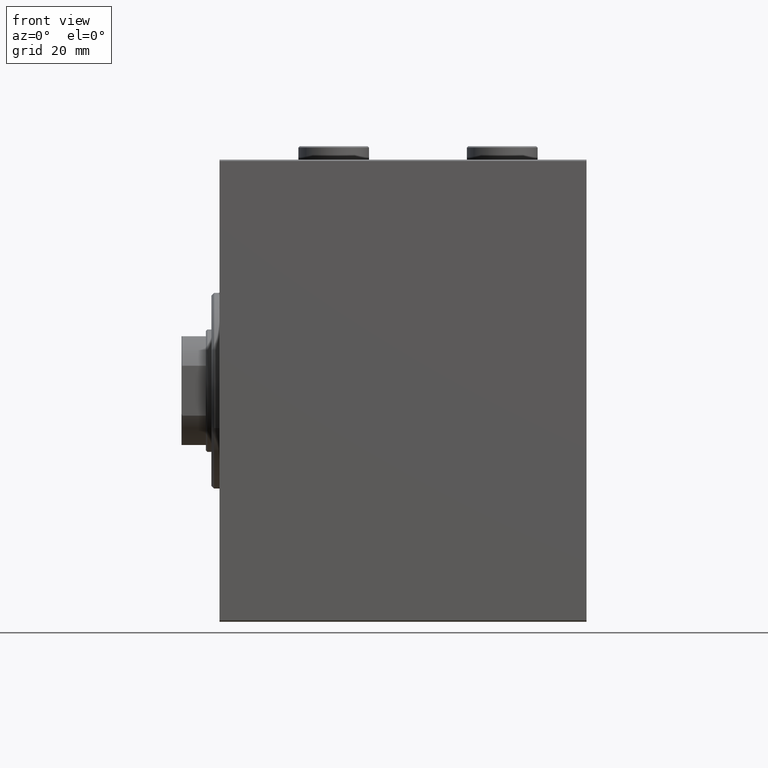
[diagram: clean part render]
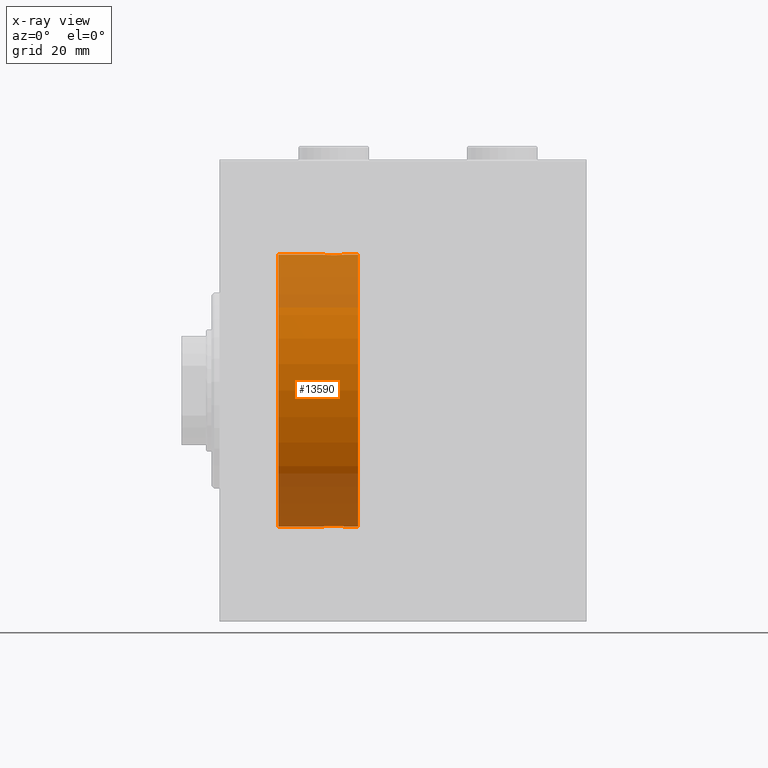
[diagram: x-ray — body ghosted, one internal face saturated and labeled with its STEP entity id]
A machine part, front view, then the same camera in x-ray: the body is ghosted and one INTERNAL B-rep face — a face not visible from any outside direction — is saturated and labeled: STEP entity #13590.
In plain terms, the highlighted cylindrical surface (partial cylindrical patch) has radius 50 mm, axis along (-1, -0, -0).
Its self-contained STEP definition (entity closure, byte-faithful):
#260 = CARTESIAN_POINT ( 'NONE',  ( 39.87368355124921493, -3.690299572754706325, -49.86386974736159772 ) ) ;
#594 = CARTESIAN_POINT ( 'NONE',  ( 37.75000000000000711, 3.968053759906218216E-15, -50.00000000000000000 ) ) ;
#706 = CARTESIAN_POINT ( 'NONE',  ( 37.88750298919665482, -1.108337267831482009, -49.98846998601261760 ) ) ;
#2549 = CARTESIAN_POINT ( 'NONE',  ( 43.88744739392799943, -3.818052230167706007, -49.85412671291931730 ) ) ;
#2625 = CARTESIAN_POINT ( 'NONE',  ( 46.03079796155343928, -1.375411031076041901, 49.98173289062310687 ) ) ;
#2845 = CARTESIAN_POINT ( 'NONE',  ( 40.89676703965783133, -4.113647494206481348, 49.83052139214890985 ) ) ;
#3077 = CARTESIAN_POINT ( 'NONE',  ( 38.62118282736263097, -2.593114840406127275, 49.93325460257640458 ) ) ;
#3301 = CARTESIAN_POINT ( 'NONE',  ( 45.37519984081966840, -2.597781786597462172, 49.93300953359122474 ) ) ;
#3440 = CARTESIAN_POINT ( 'NONE',  ( 42.28395287026697247, -4.249777379711388470, -49.81906655360197789 ) ) ;
#5381 = VERTEX_POINT ( 'NONE', #19300 ) ;
#5707 = ORIENTED_EDGE ( 'NONE', *, *, #18547, .T. ) ;
#5817 = CARTESIAN_POINT ( 'NONE',  ( 41.44002132304352415, -4.222042462213121183, 49.82145436824653473 ) ) ;
#6070 = LINE ( 'NONE', #9938, #29410 ) ;
#6266 = VECTOR ( 'NONE', #38407, 1000.000000000000000 ) ;
#6853 = CARTESIAN_POINT ( 'NONE',  ( 51.00000000000000000, 6.123233995736766085E-15, -50.00000000000000000 ) ) ;
#6868 = CARTESIAN_POINT ( 'NONE',  ( 43.37333436579038448, -4.031616700143171528, -49.83731072121799599 ) ) ;
#7300 = EDGE_CURVE ( 'NONE', #10090, #13789, #42896, .T. ) ;
#7938 = ORIENTED_EDGE ( 'NONE', *, *, #44762, .T. ) ;
#8007 = CARTESIAN_POINT ( 'NONE',  ( 37.75000000000000711, 3.968053759906218216E-15, -50.00000000000000000 ) ) ;
#9370 = ORIENTED_EDGE ( 'NONE', *, *, #21410, .F. ) ;
#9464 = CARTESIAN_POINT ( 'NONE',  ( 43.09737617879037685, -4.115209769591108291, 49.83039196709103891 ) ) ;
#9831 = CARTESIAN_POINT ( 'NONE',  ( 46.22310752799001676, -0.5531336717328987351, -49.99769193709645521 ) ) ;
#9938 = CARTESIAN_POINT ( 'NONE',  ( 51.00000000000000000, 0.000000000000000000, 50.00000000000000000 ) ) ;
#10090 = VERTEX_POINT ( 'NONE', #36501 ) ;
#10138 = CARTESIAN_POINT ( 'NONE',  ( 40.11255260607202899, -3.818052230167721106, 49.85412671291931730 ) ) ;
#10191 = CARTESIAN_POINT ( 'NONE',  ( 46.25000000000000000, 6.123233970928975205E-15, -50.00000000000000000 ) ) ;
#10279 = AXIS2_PLACEMENT_3D ( 'NONE', #19570, #26892, #32832 ) ;
#10295 = CARTESIAN_POINT ( 'NONE',  ( 44.81153066515420136, -3.199146701881660171, -49.89793607725462010 ) ) ;
#10501 = VECTOR ( 'NONE', #44972, 1000.000000000000000 ) ;
#10736 = CARTESIAN_POINT ( 'NONE',  ( 37.96920203844656783, -1.375411031076034130, -49.98173289062310687 ) ) ;
#10831 = AXIS2_PLACEMENT_3D ( 'NONE', #14688, #28392, #28614 ) ;
#11191 = CARTESIAN_POINT ( 'NONE',  ( 40.90262382120962315, -4.115209769591094968, -49.83039196709103891 ) ) ;
#11420 = CARTESIAN_POINT ( 'NONE',  ( 38.18160751012128884, -1.886522330773408695, -49.96505190380065642 ) ) ;
#12302 = B_SPLINE_CURVE_WITH_KNOTS ( 'NONE', 3,
 ( #20179, #33880, #34333, #23616, #30242, #45062, #26813, #3077, #16997, #37988, #34561, #30928, #10138, #40969, #2845, #5817, #13794, #16769, #37086, #9464, #13346, #23393, #30700, #44846, #13568, #37313, #3301, #27276, #27724, #2625, #41415, #13117, #27053, #24067 ),
 .UNSPECIFIED., .F., .F.,
 ( 4, 2, 2, 2, 2, 2, 2, 2, 2, 2, 2, 2, 2, 2, 2, 2, 4 ),
 ( 0.01329343152928754573, 0.01412407817529632778, 0.01495472482130510983, 0.01578537146731389187, 0.01661601811332267392, 0.01744666475933145597, 0.01827731140534023802, 0.01910795805134902006, 0.01993860469735780558, 0.02076925134336658763, 0.02159989798937536967, 0.02243054463538415519, 0.02326119128139293724, 0.02409183792740172275, 0.02492248457341050133, 0.02575313121941928685, 0.02658377786542807236 ),
 .UNSPECIFIED. ) ;
#12502 = AXIS2_PLACEMENT_3D ( 'NONE', #23837, #30698, #34774 ) ;
#12954 = B_SPLINE_CURVE_WITH_KNOTS ( 'NONE', 3,
 ( #41114, #31072, #9831, #44989, #27649, #23762, #33803, #26974, #41571, #10295, #37682, #44316, #2549, #6868, #20778, #34704, #3440, #17363, #31289, #11191, #24899, #20994, #260, #14610, #24439, #14168, #25352, #31732, #11420, #10736, #706, #39262, #18270, #8007 ),
 .UNSPECIFIED., .F., .F.,
 ( 4, 2, 2, 2, 2, 2, 2, 2, 2, 2, 2, 2, 2, 2, 2, 2, 4 ),
 ( 0.01329343152928757349, 0.01412407817529635554, 0.01495472482130513932, 0.01578537146731392310, 0.01661601811332270515, 0.01744666475933148719, 0.01827731140534026924, 0.01910795805134905129, 0.01993860469735783680, 0.02076925134336661885, 0.02159989798937540090, 0.02243054463538418294, 0.02326119128139296499, 0.02409183792740174704, 0.02492248457341052909, 0.02575313121941931460, 0.02658377786542809665 ),
 .UNSPECIFIED. ) ;
#13117 = CARTESIAN_POINT ( 'NONE',  ( 46.22242635520781562, -0.5587117664567141651, 49.99763378604805553 ) ) ;
#13326 = LINE ( 'NONE', #44376, #6266 ) ;
#13346 = CARTESIAN_POINT ( 'NONE',  ( 43.36710647554575360, -4.033756670430847180, 49.83713703490975178 ) ) ;
#13568 = CARTESIAN_POINT ( 'NONE',  ( 44.80697831839310652, -3.203153387937322183, 49.89767833571684719 ) ) ;
#13590 = ADVANCED_FACE ( 'NONE', ( #40580 ), #43791, .F. ) ;
#13721 = CARTESIAN_POINT ( 'NONE',  ( 51.00000000000000000, 6.123233995736766085E-15, -50.00000000000000000 ) ) ;
#13789 = VERTEX_POINT ( 'NONE', #44466 ) ;
#13794 = CARTESIAN_POINT ( 'NONE',  ( 41.71604712973302043, -4.249777379711404457, 49.81906655360197789 ) ) ;
#14168 = CARTESIAN_POINT ( 'NONE',  ( 38.80078072038718062, -2.811461347331092320, -49.92127983148853332 ) ) ;
#14239 = ORIENTED_EDGE ( 'NONE', *, *, #7300, .T. ) ;
#14610 = CARTESIAN_POINT ( 'NONE',  ( 39.41179785323798512, -3.382416624899766244, -49.88570010427955026 ) ) ;
#14688 = CARTESIAN_POINT ( 'NONE',  ( 21.60000000000000142, 0.000000000000000000, 0.000000000000000000 ) ) ;
#14810 = VERTEX_POINT ( 'NONE', #10191 ) ;
#15688 = EDGE_CURVE ( 'NONE', #5381, #40502, #34354, .T. ) ;
#16769 = CARTESIAN_POINT ( 'NONE',  ( 42.27724927037918690, -4.250219976861644433, 49.81902879621014080 ) ) ;
#16997 = CARTESIAN_POINT ( 'NONE',  ( 38.79696438048011942, -2.807099414226279510, 49.92152599098507437 ) ) ;
#17363 = CARTESIAN_POINT ( 'NONE',  ( 41.72275072962082021, -4.250219976861628446, -49.81902879621016211 ) ) ;
#18270 = CARTESIAN_POINT ( 'NONE',  ( 37.75000000000001421, -0.2808785465865586972, -50.00000000000001421 ) ) ;
#18547 = EDGE_CURVE ( 'NONE', #34050, #25473, #12302, .T. ) ;
#19300 = CARTESIAN_POINT ( 'NONE',  ( 51.00000000000000000, 6.123233995736766085E-15, -50.00000000000000000 ) ) ;
#19570 = CARTESIAN_POINT ( 'NONE',  ( 51.00000000000000000, 0.000000000000000000, 0.000000000000000000 ) ) ;
#20179 = CARTESIAN_POINT ( 'NONE',  ( 37.75000000000000711, -2.480770331693776875E-23, 50.00000000000000000 ) ) ;
#20778 = CARTESIAN_POINT ( 'NONE',  ( 43.10323296034215446, -4.113647494206469801, -49.83052139214892406 ) ) ;
#20859 = CARTESIAN_POINT ( 'NONE',  ( 51.00000000000000000, 0.000000000000000000, 50.00000000000000000 ) ) ;
#20994 = CARTESIAN_POINT ( 'NONE',  ( 40.11782950515556934, -3.820681512513366851, -49.85392475515399724 ) ) ;
#21003 = DIRECTION ( 'NONE',  ( -1.000000000000000000, -0.000000000000000000, -0.000000000000000000 ) ) ;
#21410 = EDGE_CURVE ( 'NONE', #40502, #25473, #6070, .T. ) ;
#23393 = CARTESIAN_POINT ( 'NONE',  ( 43.88217049484444487, -3.820681512513379730, 49.85392475515401145 ) ) ;
#23415 = DIRECTION ( 'NONE',  ( -1.000000000000000000, -0.000000000000000000, -0.000000000000000000 ) ) ;
#23616 = CARTESIAN_POINT ( 'NONE',  ( 37.88568086693992143, -1.101350136471743291, 49.98862054280449030 ) ) ;
#23762 = CARTESIAN_POINT ( 'NONE',  ( 45.82100581985224608, -1.881229021238117749, -49.96525240872482954 ) ) ;
#23837 = CARTESIAN_POINT ( 'NONE',  ( 51.00000000000000000, 0.000000000000000000, 0.000000000000000000 ) ) ;
#24067 = CARTESIAN_POINT ( 'NONE',  ( 46.25000000000000000, -1.456404791334935357E-15, 50.00000000000000000 ) ) ;
#24439 = CARTESIAN_POINT ( 'NONE',  ( 39.19302168160690769, -3.203153387937303087, -49.89767833571684008 ) ) ;
#24899 = CARTESIAN_POINT ( 'NONE',  ( 40.63289352445425351, -4.033756670430834745, -49.83713703490973757 ) ) ;
#25352 = CARTESIAN_POINT ( 'NONE',  ( 38.62480015918035292, -2.597781786597455067, -49.93300953359122474 ) ) ;
#25473 = VERTEX_POINT ( 'NONE', #28724 ) ;
#25806 = ORIENTED_EDGE ( 'NONE', *, *, #32177, .F. ) ;
#26813 = CARTESIAN_POINT ( 'NONE',  ( 38.31062844320614857, -2.128188802142364722, 49.95522967821975158 ) ) ;
#26892 = DIRECTION ( 'NONE',  ( -1.000000000000000000, -0.000000000000000000, -0.000000000000000000 ) ) ;
#26974 = CARTESIAN_POINT ( 'NONE',  ( 45.37881717263738324, -2.593114840406115729, -49.93325460257640458 ) ) ;
#27053 = CARTESIAN_POINT ( 'NONE',  ( 46.25000000000001421, -0.2808785465865648034, 50.00000000000001421 ) ) ;
#27276 = CARTESIAN_POINT ( 'NONE',  ( 45.68602832121950286, -2.133925816755179117, 49.95498245321557818 ) ) ;
#27444 = EDGE_CURVE ( 'NONE', #5381, #14810, #41776, .T. ) ;
#27649 = CARTESIAN_POINT ( 'NONE',  ( 46.03272642097310552, -1.369753890039644872, -49.98188917176551627 ) ) ;
#27724 = CARTESIAN_POINT ( 'NONE',  ( 45.81839248987871116, -1.886522330773416911, 49.96505190380066352 ) ) ;
#28392 = DIRECTION ( 'NONE',  ( -1.000000000000000000, 0.000000000000000000, 0.000000000000000000 ) ) ;
#28614 = DIRECTION ( 'NONE',  ( 0.000000000000000000, 0.000000000000000000, 1.000000000000000000 ) ) ;
#28724 = CARTESIAN_POINT ( 'NONE',  ( 46.25000000000000000, -1.456404791334935357E-15, 50.00000000000000000 ) ) ;
#28790 = EDGE_LOOP ( 'NONE', ( #32019, #37898, #7938, #43898, #14239, #25806, #5707, #9370 ) ) ;
#29410 = VECTOR ( 'NONE', #23415, 1000.000000000000000 ) ;
#30242 = CARTESIAN_POINT ( 'NONE',  ( 37.96727357902688738, -1.369753890039652200, 49.98188917176553048 ) ) ;
#30698 = DIRECTION ( 'NONE',  ( -1.000000000000000000, 0.000000000000000000, 0.000000000000000000 ) ) ;
#30700 = CARTESIAN_POINT ( 'NONE',  ( 44.12631644875080639, -3.690299572754719204, 49.86386974736159772 ) ) ;
#30928 = CARTESIAN_POINT ( 'NONE',  ( 39.86863600553844833, -3.687400765141529924, 49.86408552998297949 ) ) ;
#31072 = CARTESIAN_POINT ( 'NONE',  ( 46.25000000000000711, -0.2773743941468470586, -50.00000000000000711 ) ) ;
#31289 = CARTESIAN_POINT ( 'NONE',  ( 41.44591435119851752, -4.222816005855191790, -49.82138837911247720 ) ) ;
#31732 = CARTESIAN_POINT ( 'NONE',  ( 38.31397167878049714, -2.133925816755172455, -49.95498245321557818 ) ) ;
#32019 = ORIENTED_EDGE ( 'NONE', *, *, #15688, .F. ) ;
#32177 = EDGE_CURVE ( 'NONE', #34050, #13789, #13326, .T. ) ;
#32651 = CARTESIAN_POINT ( 'NONE',  ( 37.75000000000000711, -2.480770331693776875E-23, 50.00000000000000000 ) ) ;
#32832 = DIRECTION ( 'NONE',  ( 0.000000000000000000, 0.000000000000000000, 1.000000000000000000 ) ) ;
#33112 = EDGE_CURVE ( 'NONE', #37336, #10090, #41582, .T. ) ;
#33803 = CARTESIAN_POINT ( 'NONE',  ( 45.68937155679385853, -2.128188802142354508, -49.95522967821975158 ) ) ;
#33880 = CARTESIAN_POINT ( 'NONE',  ( 37.74999999999999289, -0.2773743941468536645, 50.00000000000000000 ) ) ;
#34050 = VERTEX_POINT ( 'NONE', #32651 ) ;
#34333 = CARTESIAN_POINT ( 'NONE',  ( 37.77689247200999745, -0.5531336717329046193, 49.99769193709644099 ) ) ;
#34354 = CIRCLE ( 'NONE', #12502, 50.00000000000000000 ) ;
#34561 = CARTESIAN_POINT ( 'NONE',  ( 39.40687279114044372, -3.378657745070624774, 49.88595615988428733 ) ) ;
#34704 = CARTESIAN_POINT ( 'NONE',  ( 42.55997867695646164, -4.222042462213109637, -49.82145436824654183 ) ) ;
#34774 = DIRECTION ( 'NONE',  ( 0.000000000000000000, 0.000000000000000000, 1.000000000000000000 ) ) ;
#36501 = CARTESIAN_POINT ( 'NONE',  ( 21.60000000000000142, 6.123233995736766085E-15, -50.00000000000000000 ) ) ;
#37086 = CARTESIAN_POINT ( 'NONE',  ( 42.55408564880149669, -4.222816005855207777, 49.82138837911247009 ) ) ;
#37313 = CARTESIAN_POINT ( 'NONE',  ( 45.19921927961281938, -2.811461347331110083, 49.92127983148853332 ) ) ;
#37336 = VERTEX_POINT ( 'NONE', #594 ) ;
#37682 = CARTESIAN_POINT ( 'NONE',  ( 44.59312720885954917, -3.378657745070611895, -49.88595615988430154 ) ) ;
#37898 = ORIENTED_EDGE ( 'NONE', *, *, #27444, .T. ) ;
#37988 = CARTESIAN_POINT ( 'NONE',  ( 39.18846933484581285, -3.199146701881674382, 49.89793607725460589 ) ) ;
#38407 = DIRECTION ( 'NONE',  ( -1.000000000000000000, -0.000000000000000000, -0.000000000000000000 ) ) ;
#39262 = CARTESIAN_POINT ( 'NONE',  ( 37.77757364479219149, -0.5587117664567073927, -49.99763378604802000 ) ) ;
#40502 = VERTEX_POINT ( 'NONE', #20859 ) ;
#40580 = FACE_OUTER_BOUND ( 'NONE', #28790, .T. ) ;
#40969 = CARTESIAN_POINT ( 'NONE',  ( 40.62666563420964394, -4.031616700143185739, 49.83731072121799599 ) ) ;
#41114 = CARTESIAN_POINT ( 'NONE',  ( 46.25000000000000000, 6.123233970928975205E-15, -50.00000000000000000 ) ) ;
#41415 = CARTESIAN_POINT ( 'NONE',  ( 46.11249701080335228, -1.108337267831491335, 49.98846998601261049 ) ) ;
#41571 = CARTESIAN_POINT ( 'NONE',  ( 45.20303561951989479, -2.807099414226266632, -49.92152599098507437 ) ) ;
#41582 = LINE ( 'NONE', #13721, #43476 ) ;
#41776 = LINE ( 'NONE', #6853, #10501 ) ;
#42896 = CIRCLE ( 'NONE', #10831, 50.00000000000000000 ) ;
#43476 = VECTOR ( 'NONE', #21003, 1000.000000000000000 ) ;
#43791 = CYLINDRICAL_SURFACE ( 'NONE', #10279, 50.00000000000000000 ) ;
#43898 = ORIENTED_EDGE ( 'NONE', *, *, #33112, .T. ) ;
#44316 = CARTESIAN_POINT ( 'NONE',  ( 44.13136399446156588, -3.687400765141517045, -49.86408552998297239 ) ) ;
#44376 = CARTESIAN_POINT ( 'NONE',  ( 51.00000000000000000, 0.000000000000000000, 50.00000000000000000 ) ) ;
#44466 = CARTESIAN_POINT ( 'NONE',  ( 21.60000000000000142, 0.000000000000000000, 50.00000000000000000 ) ) ;
#44762 = EDGE_CURVE ( 'NONE', #14810, #37336, #12954, .T. ) ;
#44846 = CARTESIAN_POINT ( 'NONE',  ( 44.58820214676200777, -3.382416624899779123, 49.88570010427956447 ) ) ;
#44972 = DIRECTION ( 'NONE',  ( -1.000000000000000000, -0.000000000000000000, -0.000000000000000000 ) ) ;
#44989 = CARTESIAN_POINT ( 'NONE',  ( 46.11431913306007147, -1.101350136471736407, -49.98862054280446898 ) ) ;
#45062 = CARTESIAN_POINT ( 'NONE',  ( 38.17899418014774682, -1.881229021238125743, 49.96525240872482954 ) ) ;